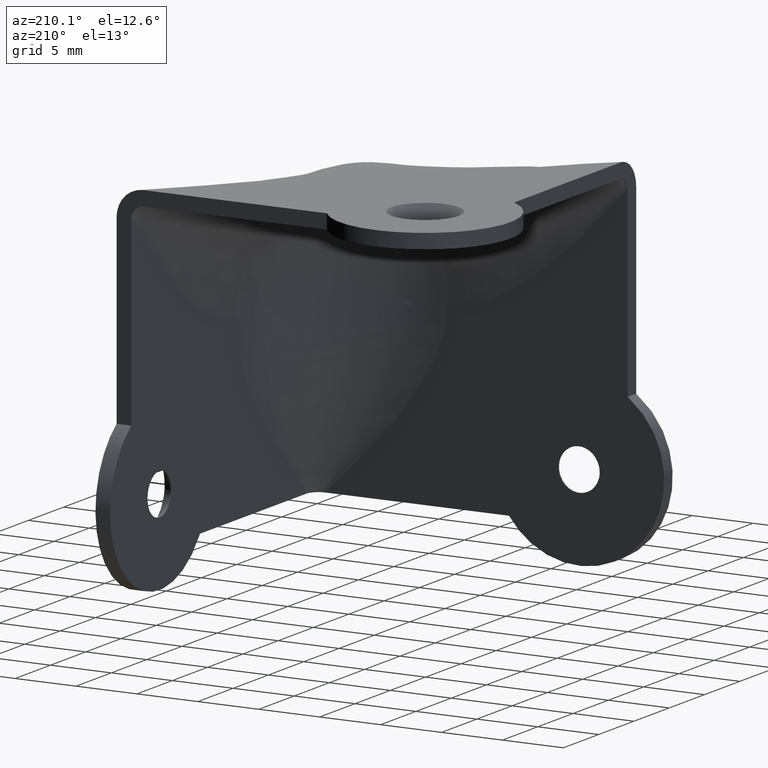
[diagram: clean part render]
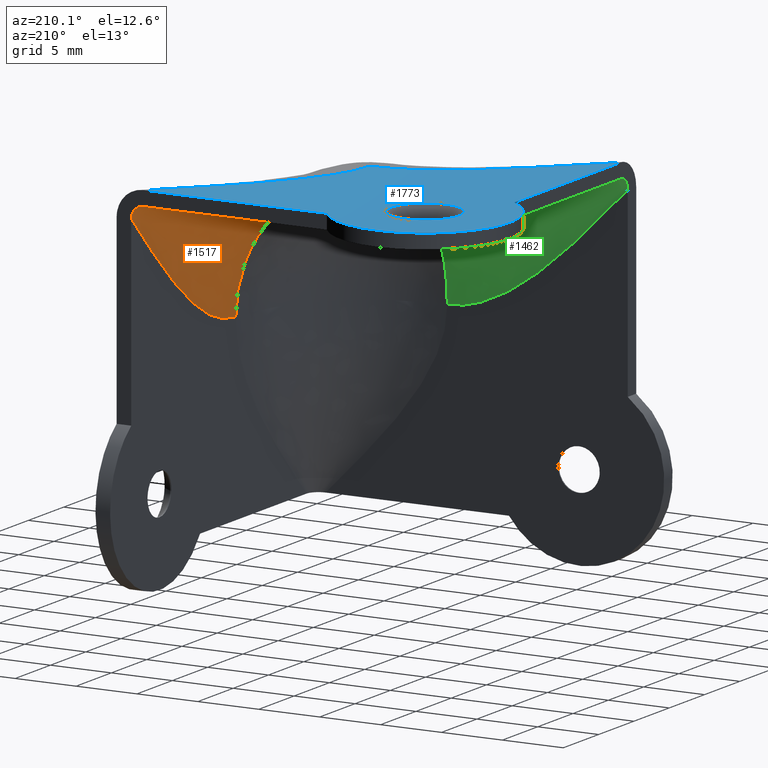
[diagram: same view with three faces highlighted in distinct colors, each labeled with its STEP entity id]
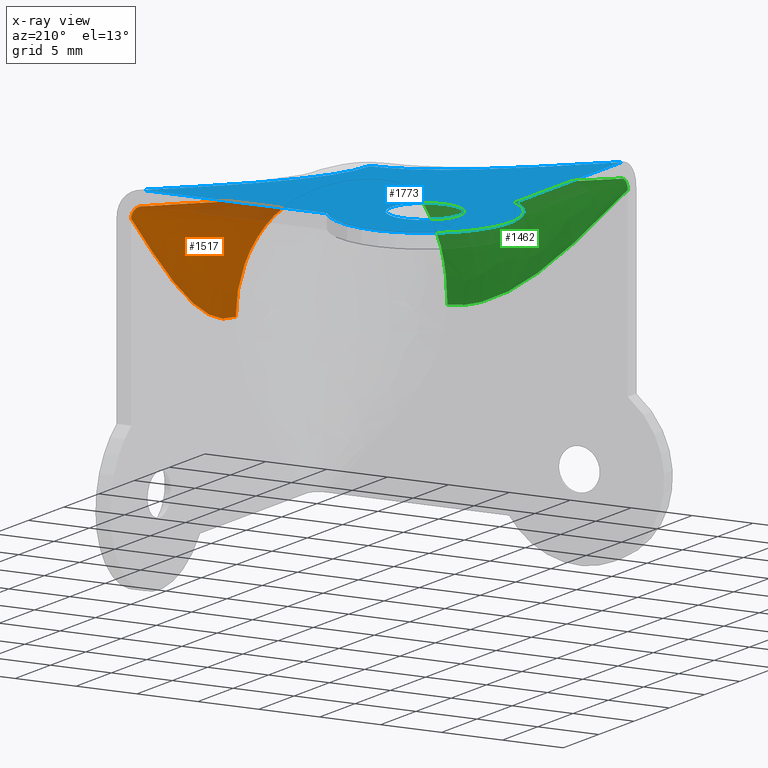
[diagram: x-ray of the same camera — body ghosted, the three highlighted faces saturated]
A machine part, auxiliary view with three faces highlighted in distinct colors.
The next image is the same camera in x-ray (body ghosted, the three faces saturated) — at least one of them is partly hidden behind the body in this view.
Their STEP definitions:

[orange] entity #1517 — the highlighted face is a freeform B-spline surface patch.
#1327=CARTESIAN_POINT('',(-1.200000000000000,12.199999999999999,17.800000000000001));
#1328=VERTEX_POINT('',#1327);
#1376=CARTESIAN_POINT('',(-12.199999999999999,12.199999999999999,28.800000000000001));
#1377=VERTEX_POINT('',#1376);
#1391=CARTESIAN_POINT('',(-12.199999999999999,12.199999999999999,28.800000000000001));
#1392=CARTESIAN_POINT('',(-1.200000000000002,12.199999999999990,28.799999999999955));
#1393=CARTESIAN_POINT('',(-1.200000000000000,12.199999999999999,17.800000000000001));
#1401=(BOUNDED_CURVE()B_SPLINE_CURVE(2,(#1391,#1392,#1393),.UNSPECIFIED.,.F.,.U.)CURVE()GEOMETRIC_REPRESENTATION_ITEM()QUASI_UNIFORM_CURVE()RATIONAL_B_SPLINE_CURVE((1.0,0.707106781186548,1.0))REPRESENTATION_ITEM(''));
#1402=EDGE_CURVE('',#1377,#1328,#1401,.T.);
#1463=CARTESIAN_POINT('',(-1.200000000000000,12.199999999999999,17.800000000000001));
#1464=CARTESIAN_POINT('',(-1.200000000000002,12.199999999999990,28.799999999999955));
#1465=CARTESIAN_POINT('',(-12.199999999999999,12.199999999999999,28.800000000000001));
#1466=CARTESIAN_POINT('',(-1.200000000000000,17.133333333333351,17.800000000000001));
#1467=CARTESIAN_POINT('',(-1.200000000000002,17.133333333333329,28.799999999999955));
#1468=CARTESIAN_POINT('',(-12.199999999999999,17.133333333333351,28.800000000000001));
#1469=CARTESIAN_POINT('',(-1.200000000000000,22.066666666666649,22.800000000000001));
#1470=CARTESIAN_POINT('',(-1.200000000000002,22.066666666666652,28.799999999999955));
#1471=CARTESIAN_POINT('',(-7.200000000000000,22.066666666666649,28.800000000000001));
#1472=CARTESIAN_POINT('',(-1.200000000000000,27.0,27.800000000000001));
#1473=CARTESIAN_POINT('',(-1.200000000000002,27.000000000000004,28.799999999999955));
#1474=CARTESIAN_POINT('',(-2.200000000000000,27.0,28.800000000000001));
#1482=(BOUNDED_SURFACE()B_SPLINE_SURFACE(2,3,((#1463,#1466,#1469,#1472),(#1464,#1467,#1470,#1473),(#1465,#1468,#1471,#1474)),.UNSPECIFIED.,.F.,.F.,.U.)B_SPLINE_SURFACE_WITH_KNOTS((3,3),(4,4),(0.0,18.225396744416180),(0.0,21.072256642324788),.UNSPECIFIED.)GEOMETRIC_REPRESENTATION_ITEM()RATIONAL_B_SPLINE_SURFACE(((1.0,1.0,1.0,1.0),(0.707106781186548,0.707106781186548,0.707106781186548,0.707106781186548),(1.0,1.0,1.0,1.0)))REPRESENTATION_ITEM('')SURFACE());
#1483=CARTESIAN_POINT('',(-1.200000000000000,27.0,27.800000000000001));
#1484=VERTEX_POINT('',#1483);
#1485=CARTESIAN_POINT('',(-2.200000000000000,27.0,28.800000000000001));
#1486=VERTEX_POINT('',#1485);
#1487=CARTESIAN_POINT('',(-1.200000000000000,27.000000000000011,27.800000000000011));
#1488=CARTESIAN_POINT('',(-1.200000000000002,27.000000000000018,28.799999999999955));
#1489=CARTESIAN_POINT('',(-2.199999999999994,27.000000000000011,28.800000000000001));
#1497=(BOUNDED_CURVE()B_SPLINE_CURVE(2,(#1487,#1488,#1489),.UNSPECIFIED.,.F.,.U.)CURVE()GEOMETRIC_REPRESENTATION_ITEM()QUASI_UNIFORM_CURVE()RATIONAL_B_SPLINE_CURVE((1.0,0.707106781186548,1.0))REPRESENTATION_ITEM(''));
#1498=EDGE_CURVE('',#1484,#1486,#1497,.T.);
#1499=ORIENTED_EDGE('',*,*,#1498,.F.);
#1500=CARTESIAN_POINT('',(-1.200000000000000,12.199999999999999,17.800000000000001));
#1501=CARTESIAN_POINT('',(-1.200000000000000,17.133333333333351,17.800000000000001));
#1502=CARTESIAN_POINT('',(-1.200000000000000,22.066666666666649,22.800000000000001));
#1503=CARTESIAN_POINT('',(-1.200000000000000,27.0,27.800000000000001));
#1504=B_SPLINE_CURVE_WITH_KNOTS('',3,(#1500,#1501,#1502,#1503),.UNSPECIFIED.,.F.,.U.,(4,4),(0.0,0.937500000000000),.UNSPECIFIED.);
#1505=EDGE_CURVE('',#1328,#1484,#1504,.T.);
#1506=ORIENTED_EDGE('',*,*,#1505,.F.);
#1507=ORIENTED_EDGE('',*,*,#1402,.F.);
#1508=CARTESIAN_POINT('',(-2.200000000000000,27.0,28.800000000000001));
#1509=CARTESIAN_POINT('',(-7.200000000000000,22.066666666666649,28.800000000000001));
#1510=CARTESIAN_POINT('',(-12.199999999999999,17.133333333333351,28.800000000000001));
#1511=CARTESIAN_POINT('',(-12.199999999999999,12.199999999999999,28.800000000000001));
#1512=B_SPLINE_CURVE_WITH_KNOTS('',3,(#1508,#1509,#1510,#1511),.UNSPECIFIED.,.F.,.U.,(4,4),(0.0,0.937500000000000),.UNSPECIFIED.);
#1513=EDGE_CURVE('',#1486,#1377,#1512,.T.);
#1514=ORIENTED_EDGE('',*,*,#1513,.F.);
#1515=EDGE_LOOP('',(#1499,#1506,#1507,#1514));
#1516=FACE_OUTER_BOUND('',#1515,.T.);
#1517=ADVANCED_FACE('',(#1516),#1482,.T.);

[blue] entity #1773 — the highlighted face is a freeform B-spline surface patch.
#85=CARTESIAN_POINT('',(-20.639487863204089,24.505982221692410,30.000000000002579));
#86=VERTEX_POINT('',#85);
#92=CARTESIAN_POINT('',(-25.800000000000001,23.0,30.0));
#93=VERTEX_POINT('',#92);
#94=CARTESIAN_POINT('',(-25.800000000000001,23.0,30.0));
#95=CARTESIAN_POINT('',(-25.799999999999990,25.799999999999990,29.999999999999993));
#96=CARTESIAN_POINT('',(-23.0,25.800000000000001,30.0));
#97=CARTESIAN_POINT('',(-21.465057763223079,25.799999999999997,30.000000000000007));
#98=CARTESIAN_POINT('',(-20.639487863204085,24.505982221692417,30.000000000002572));
#106=(BOUNDED_CURVE()B_SPLINE_CURVE(2,(#94,#95,#96,#97,#98),.UNSPECIFIED.,.F.,.U.)B_SPLINE_CURVE_WITH_KNOTS((3,2,3),(0.0,0.250000000000000,0.407950112622180),.UNSPECIFIED.)CURVE()GEOMETRIC_REPRESENTATION_ITEM()RATIONAL_B_SPLINE_CURVE((1.0,0.707106781186547,1.0,0.814949932408570,0.863729296951607))REPRESENTATION_ITEM(''));
#107=EDGE_CURVE('',#93,#86,#106,.T.);
#109=CARTESIAN_POINT('',(-22.780314531958371,20.208631465547061,30.000000000000469));
#110=VERTEX_POINT('',#109);
#111=CARTESIAN_POINT('',(-22.780314531958368,20.208631465547054,30.000000000000473));
#112=CARTESIAN_POINT('',(-22.889987700374874,20.200000000000003,30.0));
#113=CARTESIAN_POINT('',(-23.0,20.199999999999999,30.0));
#114=CARTESIAN_POINT('',(-25.799999999999990,20.200000000000003,29.999999999999993));
#115=CARTESIAN_POINT('',(-25.800000000000001,23.0,30.0));
#123=(BOUNDED_CURVE()B_SPLINE_CURVE(2,(#111,#112,#113,#114,#115),.UNSPECIFIED.,.F.,.U.)B_SPLINE_CURVE_WITH_KNOTS((3,2,3),(0.736331300632321,0.750000000000000,1.0),.UNSPECIFIED.)CURVE()GEOMETRIC_REPRESENTATION_ITEM()RATIONAL_B_SPLINE_CURVE((0.969723356170884,0.983986122580828,1.0,0.707106781186547,1.0))REPRESENTATION_ITEM(''));
#124=EDGE_CURVE('',#110,#93,#123,.T.);
#228=CARTESIAN_POINT('',(-20.199999999999999,23.0,30.0));
#229=VERTEX_POINT('',#228);
#230=CARTESIAN_POINT('',(-20.199999999999999,23.0,30.0));
#231=CARTESIAN_POINT('',(-20.199999999999996,20.411706623363788,29.999999999999993));
#232=CARTESIAN_POINT('',(-22.780314531958364,20.208631465547057,30.000000000000473));
#240=(BOUNDED_CURVE()B_SPLINE_CURVE(2,(#230,#231,#232),.UNSPECIFIED.,.F.,.U.)B_SPLINE_CURVE_WITH_KNOTS((3,3),(0.500000000000000,0.736331300632320),.UNSPECIFIED.)CURVE()GEOMETRIC_REPRESENTATION_ITEM()RATIONAL_B_SPLINE_CURVE((1.0,0.723120658605721,0.969723356170882))REPRESENTATION_ITEM(''));
#241=EDGE_CURVE('',#229,#110,#240,.T.);
#243=CARTESIAN_POINT('',(-20.639487863204092,24.505982221692413,30.000000000002583));
#244=CARTESIAN_POINT('',(-20.200000000000003,23.817118555115574,30.000000000000011));
#245=CARTESIAN_POINT('',(-20.199999999999999,23.0,30.0));
#253=(BOUNDED_CURVE()B_SPLINE_CURVE(2,(#243,#244,#245),.UNSPECIFIED.,.F.,.U.)B_SPLINE_CURVE_WITH_KNOTS((3,3),(0.407950112622180,0.500000000000000),.UNSPECIFIED.)CURVE()GEOMETRIC_REPRESENTATION_ITEM()RATIONAL_B_SPLINE_CURVE((0.863729296951607,0.892156848777978,1.0))REPRESENTATION_ITEM(''));
#254=EDGE_CURVE('',#86,#229,#253,.T.);
#1139=CARTESIAN_POINT('',(-12.199999999999999,12.199999999999999,30.0));
#1140=VERTEX_POINT('',#1139);
#1191=CARTESIAN_POINT('',(-2.200000000000000,27.0,30.0));
#1192=VERTEX_POINT('',#1191);
#1208=CARTESIAN_POINT('',(-12.199999999999999,12.199999999999999,30.0));
#1209=CARTESIAN_POINT('',(-12.199999999999999,17.133333333333351,30.0));
#1210=CARTESIAN_POINT('',(-7.200000000000000,22.066666666666698,30.0));
#1211=CARTESIAN_POINT('',(-2.200000000000000,27.0,30.0));
#1212=B_SPLINE_CURVE_WITH_KNOTS('',3,(#1208,#1209,#1210,#1211),.UNSPECIFIED.,.F.,.U.,(4,4),(0.127906976744185,1.0),.UNSPECIFIED.);
#1213=EDGE_CURVE('',#1140,#1192,#1212,.T.);
#1248=CARTESIAN_POINT('',(-27.0,2.200000000000000,30.0));
#1249=VERTEX_POINT('',#1248);
#1271=CARTESIAN_POINT('',(-27.0,2.200000000000000,30.0));
#1272=CARTESIAN_POINT('',(-22.066666666666649,7.200000000000000,30.0));
#1273=CARTESIAN_POINT('',(-17.133333333333351,12.199999999999999,30.0));
#1274=CARTESIAN_POINT('',(-12.199999999999999,12.199999999999999,30.0));
#1275=B_SPLINE_CURVE_WITH_KNOTS('',3,(#1271,#1272,#1273,#1274),.UNSPECIFIED.,.F.,.U.,(4,4),(0.127906976744186,1.0),.UNSPECIFIED.);
#1276=EDGE_CURVE('',#1249,#1140,#1275,.T.);
#1536=CARTESIAN_POINT('',(-27.0,17.255437000000001,30.0));
#1537=VERTEX_POINT('',#1536);
#1538=CARTESIAN_POINT('',(-17.255437000000100,27.0,30.0));
#1539=VERTEX_POINT('',#1538);
#1540=CARTESIAN_POINT('',(-27.0,17.255437000000001,30.0));
#1541=CARTESIAN_POINT('',(-30.785448626976049,19.891285286177503,30.000000000000004));
#1542=CARTESIAN_POINT('',(-29.856617814763421,24.409536144364129,30.0));
#1543=CARTESIAN_POINT('',(-28.927787002550787,28.927787002550737,30.000000000000004));
#1544=CARTESIAN_POINT('',(-24.409536144364189,29.856617814763410,30.0));
#1545=CARTESIAN_POINT('',(-19.891285286177578,30.785448626976070,30.000000000000004));
#1546=CARTESIAN_POINT('',(-17.255437000000100,27.0,30.0));
#1554=(BOUNDED_CURVE()B_SPLINE_CURVE(2,(#1540,#1541,#1542,#1543,#1544,#1545,#1546),.UNSPECIFIED.,.F.,.U.)B_SPLINE_CURVE_WITH_KNOTS((3,2,2,3),(0.0,0.333333333333333,0.666666666666667,1.0),.UNSPECIFIED.)CURVE()GEOMETRIC_REPRESENTATION_ITEM()RATIONAL_B_SPLINE_CURVE((1.0,0.835007645547305,1.0,0.835007645547305,1.0,0.835007645547305,1.0))REPRESENTATION_ITEM(''));
#1555=EDGE_CURVE('',#1537,#1539,#1554,.T.);
#1696=CARTESIAN_POINT('',(-17.255437000000100,27.0,30.0));
#1697=CARTESIAN_POINT('',(-2.200000000000000,27.0,30.0));
#1698=QUASI_UNIFORM_CURVE('',1,(#1696,#1697),.UNSPECIFIED.,.F.,.U.);
#1699=EDGE_CURVE('',#1539,#1192,#1698,.T.);
#1732=CARTESIAN_POINT('',(-27.0,17.255437000000001,30.0));
#1733=CARTESIAN_POINT('',(-27.0,2.200000000000000,30.0));
#1734=QUASI_UNIFORM_CURVE('',1,(#1732,#1733),.UNSPECIFIED.,.F.,.U.);
#1735=EDGE_CURVE('',#1537,#1249,#1734,.T.);
#1755=CARTESIAN_POINT('',(-31.385233555878369,0.811550755979871,30.0));
#1756=CARTESIAN_POINT('',(-0.811549936233191,0.811550755979871,30.0));
#1757=CARTESIAN_POINT('',(-31.385233555878369,31.385232728747070,30.0));
#1758=CARTESIAN_POINT('',(-0.811549936233191,31.385232728747070,30.0));
#1759=B_SPLINE_SURFACE_WITH_KNOTS('',1,1,((#1755,#1757),(#1756,#1758)),.UNSPECIFIED.,.F.,.F.,.U.,(2,2),(2,2),(0.0,30.573683619645170),(0.0,30.573681972767201),.UNSPECIFIED.);
#1760=ORIENTED_EDGE('',*,*,#1276,.T.);
#1761=ORIENTED_EDGE('',*,*,#1213,.T.);
#1762=ORIENTED_EDGE('',*,*,#1699,.F.);
#1763=ORIENTED_EDGE('',*,*,#1555,.F.);
#1764=ORIENTED_EDGE('',*,*,#1735,.T.);
#1765=EDGE_LOOP('',(#1760,#1761,#1762,#1763,#1764));
#1766=FACE_OUTER_BOUND('',#1765,.T.);
#1767=ORIENTED_EDGE('',*,*,#241,.T.);
#1768=ORIENTED_EDGE('',*,*,#124,.T.);
#1769=ORIENTED_EDGE('',*,*,#107,.T.);
#1770=ORIENTED_EDGE('',*,*,#254,.T.);
#1771=EDGE_LOOP('',(#1767,#1768,#1769,#1770));
#1772=FACE_BOUND('',#1771,.T.);
#1773=ADVANCED_FACE('',(#1766,#1772),#1759,.T.);

[green] entity #1462 — the highlighted face is a freeform B-spline surface patch.
#1318=CARTESIAN_POINT('',(-12.199999999999999,1.200000000000000,17.800000000000001));
#1319=VERTEX_POINT('',#1318);
#1376=CARTESIAN_POINT('',(-12.199999999999999,12.199999999999999,28.800000000000001));
#1377=VERTEX_POINT('',#1376);
#1378=CARTESIAN_POINT('',(-12.199999999999999,1.200000000000000,17.800000000000001));
#1379=CARTESIAN_POINT('',(-12.199999999999990,1.200000000000002,28.799999999999955));
#1380=CARTESIAN_POINT('',(-12.199999999999999,12.199999999999999,28.800000000000001));
#1388=(BOUNDED_CURVE()B_SPLINE_CURVE(2,(#1378,#1379,#1380),.UNSPECIFIED.,.F.,.U.)CURVE()GEOMETRIC_REPRESENTATION_ITEM()QUASI_UNIFORM_CURVE()RATIONAL_B_SPLINE_CURVE((1.0,0.707106781186548,1.0))REPRESENTATION_ITEM(''));
#1389=EDGE_CURVE('',#1319,#1377,#1388,.T.);
#1408=CARTESIAN_POINT('',(-12.199999999999999,12.199999999999999,28.800000000000001));
#1409=CARTESIAN_POINT('',(-12.199999999999990,1.200000000000002,28.799999999999955));
#1410=CARTESIAN_POINT('',(-12.199999999999999,1.200000000000000,17.800000000000001));
#1411=CARTESIAN_POINT('',(-17.133333333333351,12.199999999999999,28.800000000000001));
#1412=CARTESIAN_POINT('',(-17.133333333333329,1.200000000000002,28.799999999999955));
#1413=CARTESIAN_POINT('',(-17.133333333333351,1.200000000000000,17.800000000000001));
#1414=CARTESIAN_POINT('',(-22.066666666666649,7.200000000000000,28.800000000000001));
#1415=CARTESIAN_POINT('',(-22.066666666666652,1.200000000000002,28.799999999999955));
#1416=CARTESIAN_POINT('',(-22.066666666666649,1.200000000000000,22.800000000000001));
#1417=CARTESIAN_POINT('',(-27.0,2.200000000000000,28.800000000000001));
#1418=CARTESIAN_POINT('',(-27.000000000000004,1.200000000000002,28.799999999999955));
#1419=CARTESIAN_POINT('',(-27.0,1.200000000000000,27.800000000000001));
#1427=(BOUNDED_SURFACE()B_SPLINE_SURFACE(2,3,((#1408,#1411,#1414,#1417),(#1409,#1412,#1415,#1418),(#1410,#1413,#1416,#1419)),.UNSPECIFIED.,.F.,.F.,.U.)B_SPLINE_SURFACE_WITH_KNOTS((3,3),(4,4),(0.0,18.225396744416180),(0.0,21.072256642324788),.UNSPECIFIED.)GEOMETRIC_REPRESENTATION_ITEM()RATIONAL_B_SPLINE_SURFACE(((1.0,1.0,1.0,1.0),(0.707106781186548,0.707106781186548,0.707106781186548,0.707106781186548),(1.0,1.0,1.0,1.0)))REPRESENTATION_ITEM('')SURFACE());
#1428=CARTESIAN_POINT('',(-27.0,2.200000000000000,28.800000000000001));
#1429=VERTEX_POINT('',#1428);
#1430=CARTESIAN_POINT('',(-27.0,1.200000000000000,27.800000000000001));
#1431=VERTEX_POINT('',#1430);
#1432=CARTESIAN_POINT('',(-27.0,2.200000000000000,28.800000000000001));
#1433=CARTESIAN_POINT('',(-27.000000000000004,1.200000000000002,28.799999999999955));
#1434=CARTESIAN_POINT('',(-27.0,1.200000000000000,27.800000000000001));
#1442=(BOUNDED_CURVE()B_SPLINE_CURVE(2,(#1432,#1433,#1434),.UNSPECIFIED.,.F.,.U.)CURVE()GEOMETRIC_REPRESENTATION_ITEM()QUASI_UNIFORM_CURVE()RATIONAL_B_SPLINE_CURVE((1.0,0.707106781186548,1.0))REPRESENTATION_ITEM(''));
#1443=EDGE_CURVE('',#1429,#1431,#1442,.T.);
#1444=ORIENTED_EDGE('',*,*,#1443,.F.);
#1445=CARTESIAN_POINT('',(-12.199999999999999,12.199999999999999,28.800000000000001));
#1446=CARTESIAN_POINT('',(-17.133333333333351,12.199999999999999,28.800000000000001));
#1447=CARTESIAN_POINT('',(-22.066666666666649,7.200000000000000,28.800000000000001));
#1448=CARTESIAN_POINT('',(-27.0,2.200000000000000,28.800000000000001));
#1449=B_SPLINE_CURVE_WITH_KNOTS('',3,(#1445,#1446,#1447,#1448),.UNSPECIFIED.,.F.,.U.,(4,4),(0.0,0.937500000000000),.UNSPECIFIED.);
#1450=EDGE_CURVE('',#1377,#1429,#1449,.T.);
#1451=ORIENTED_EDGE('',*,*,#1450,.F.);
#1452=ORIENTED_EDGE('',*,*,#1389,.F.);
#1453=CARTESIAN_POINT('',(-27.0,1.200000000000000,27.800000000000001));
#1454=CARTESIAN_POINT('',(-22.066666666666649,1.200000000000000,22.800000000000001));
#1455=CARTESIAN_POINT('',(-17.133333333333351,1.200000000000000,17.800000000000001));
#1456=CARTESIAN_POINT('',(-12.199999999999999,1.200000000000000,17.800000000000001));
#1457=B_SPLINE_CURVE_WITH_KNOTS('',3,(#1453,#1454,#1455,#1456),.UNSPECIFIED.,.F.,.U.,(4,4),(0.0,0.937500000000000),.UNSPECIFIED.);
#1458=EDGE_CURVE('',#1431,#1319,#1457,.T.);
#1459=ORIENTED_EDGE('',*,*,#1458,.F.);
#1460=EDGE_LOOP('',(#1444,#1451,#1452,#1459));
#1461=FACE_OUTER_BOUND('',#1460,.T.);
#1462=ADVANCED_FACE('',(#1461),#1427,.T.);